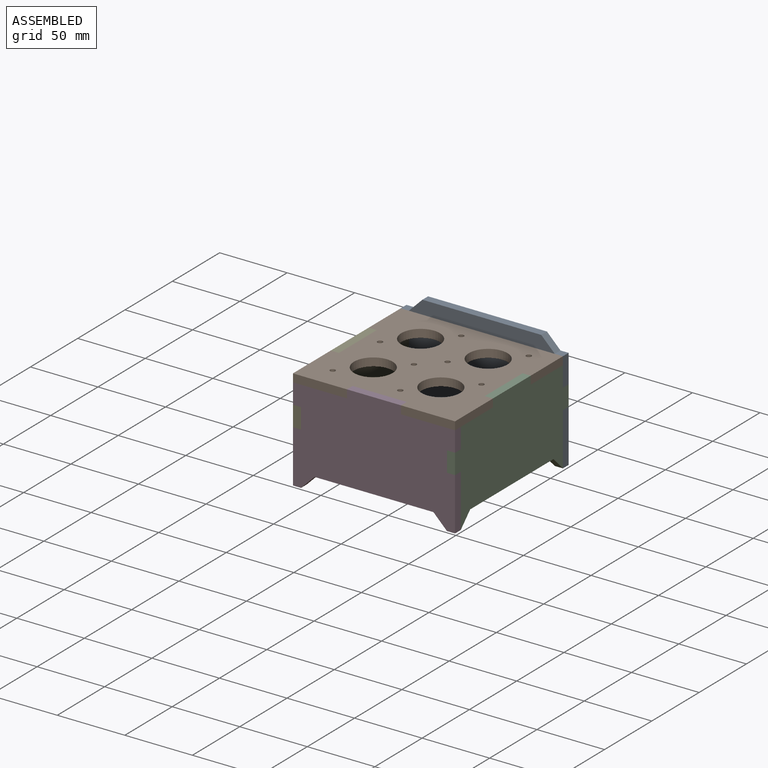
[diagram: assembled view]
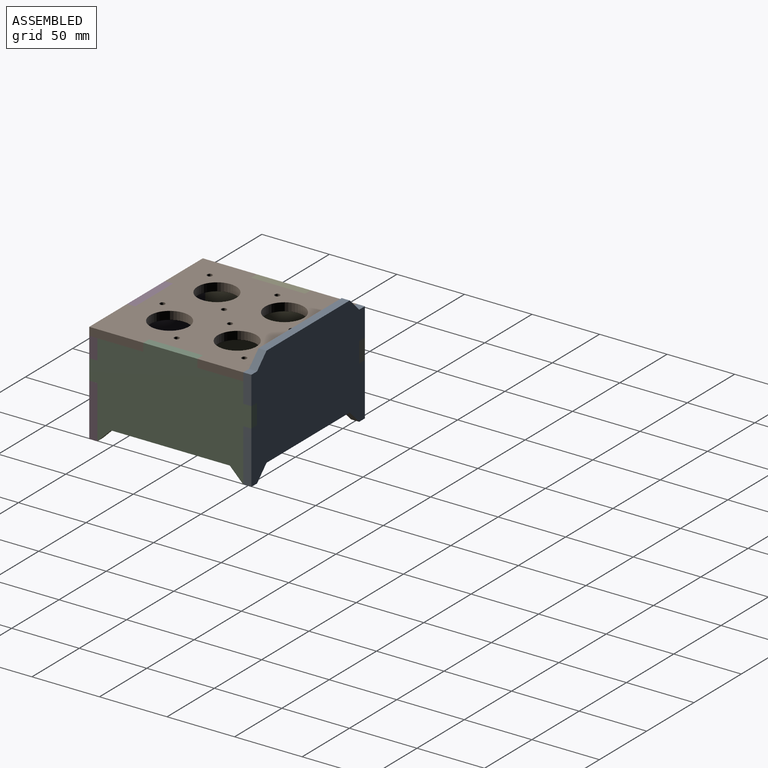
[diagram: assembled view, second angle]
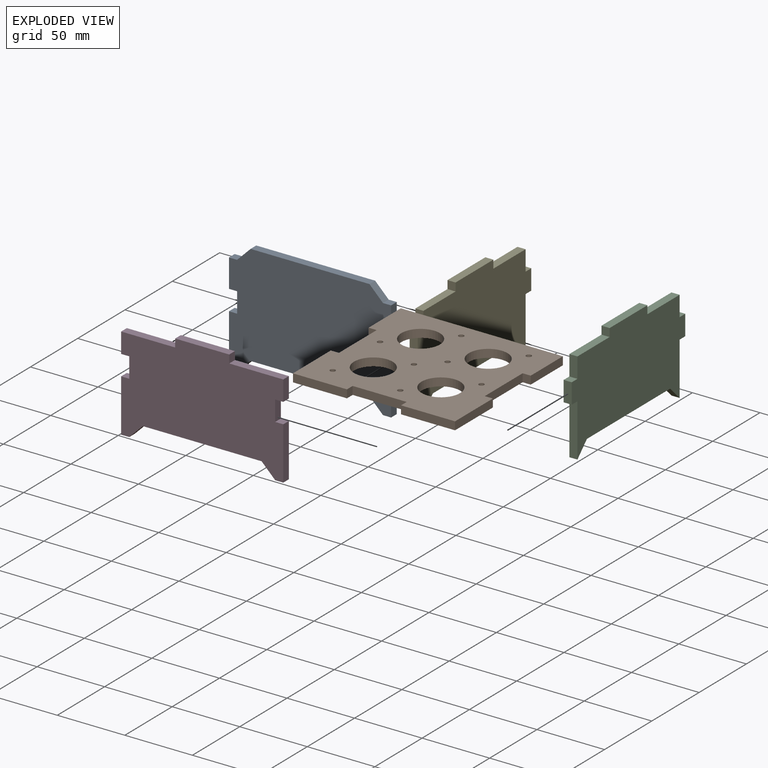
[diagram: exploded view]
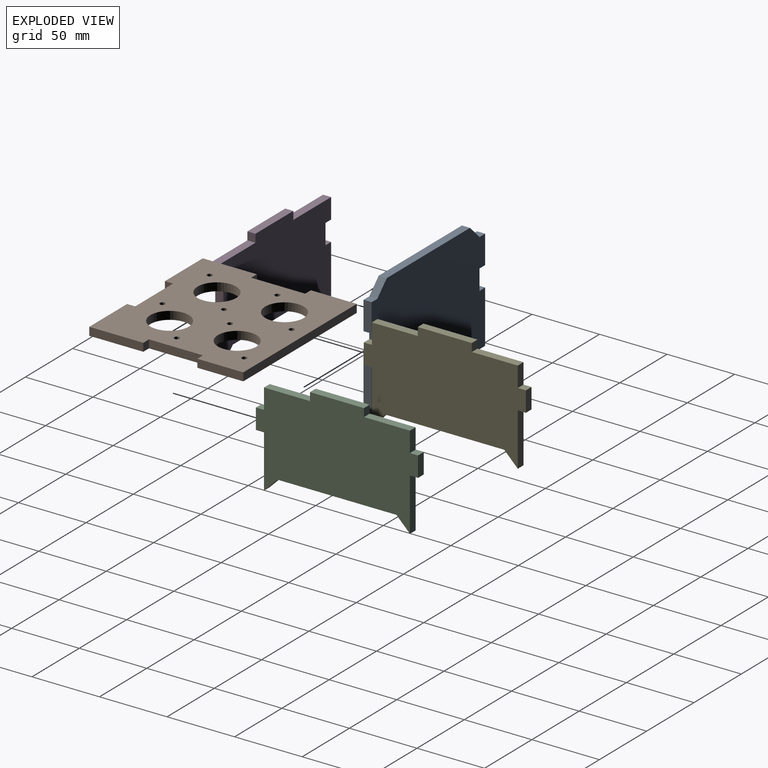
[diagram: exploded view, second angle]
ASSEMBLY  parts=5 mates=4
PART A: 22 faces, bbox 120x85x6 mm
  f0: plane 88x6mm, normal (0,-1,0), area 528mm2, adj f1,f19,f20,f21
  f1: plane 10x10mm, normal (-0.71,-0.71,0), area 84.9mm2, adj f0,f2,f20,f21
  f2: plane 6x6mm, normal (0,-1,0), area 36mm2, adj f1,f3,f20,f21
  f3: plane 39x6mm, normal (1,0,0), area 234mm2, adj f2,f4,f20,f21
  f4: plane 6x6mm, normal (0,1,0), area 36mm2, adj f3,f5,f20,f21
  f5: plane 15x6mm, normal (1,0,0), area 90mm2, adj f4,f6,f20,f21
  f6: plane 6x6mm, normal (0,-1,0), area 36mm2, adj f5,f7,f20,f21
  f7: plane 21x6mm, normal (1,0,0), area 126mm2, adj f6,f8,f20,f21
  f8: plane 6x6mm, normal (0,1,0), area 36mm2, adj f7,f9,f20,f21
  f9: plane 10x10mm, normal (0.71,0.71,0), area 84.9mm2, adj f8,f10,f20,f21
  f10: plane 88x6mm, normal (0,1,0), area 528mm2, adj f9,f11,f20,f21
  f11: plane 10x10mm, normal (-0.71,0.71,0), area 84.9mm2, adj f10,f12,f20,f21
  f12: plane 6x6mm, normal (0,1,0), area 36mm2, adj f11,f13,f20,f21
  f13: plane 21x6mm, normal (-1,0,0), area 126mm2, adj f12,f14,f20,f21
  f14: plane 6x6mm, normal (0,-1,0), area 36mm2, adj f13,f15,f20,f21
  f15: plane 15x6mm, normal (-1,0,0), area 90mm2, adj f14,f16,f20,f21
  f16: plane 6x6mm, normal (0,1,0), area 36mm2, adj f15,f17,f20,f21
  f17: plane 39x6mm, normal (-1,0,0), area 234mm2, adj f16,f18,f20,f21
  f18: plane 6x6mm, normal (0,-1,0), area 36mm2, adj f17,f19,f20,f21
  f19: plane 10x10mm, normal (0.71,-0.71,0), area 84.9mm2, adj f0,f18,f20,f21
  f20: plane 120x85mm, normal (0,0,1), area 8820mm2, adj f0,f1,f2,f3,f4,f5,f6,f7
  f21: plane 120x85mm, normal (0,0,-1), area 8820mm2, adj f0,f1,f2,f3,f4,f5,f6,f7
PART B: 30 faces, bbox 120x114x6 mm
  f0: plane 40x6mm, normal (0,-1,0), area 240mm2, adj f1,f26,f28,f29
  f1: plane 40x6mm, normal (1,0,0), area 240mm2, adj f0,f2,f28,f29
  f2: plane 6x6mm, normal (0,1,0), area 36mm2, adj f1,f3,f28,f29
  f3: plane 40x6mm, normal (1,0,0), area 240mm2, adj f2,f4,f28,f29
  f4: plane 6x6mm, normal (0,-1,0), area 36mm2, adj f3,f5,f28,f29
  f5: plane 34x6mm, normal (1,0,0), area 204mm2, adj f4,f6,f28,f29
  f6: plane 120x6mm, normal (0,1,0), area 720mm2, adj f5,f7,f28,f29
  f7: plane 34x6mm, normal (-1,0,0), area 204mm2, adj f6,f8,f28,f29
  f8: plane 6x6mm, normal (0,-1,0), area 36mm2, adj f7,f9,f28,f29
  f9: plane 40x6mm, normal (-1,0,0), area 240mm2, adj f8,f10,f28,f29
  f10: plane 6x6mm, normal (0,1,0), area 36mm2, adj f9,f11,f28,f29
  f11: plane 40x6mm, normal (-1,0,0), area 240mm2, adj f10,f12,f28,f29
  f12: plane 40x6mm, normal (0,-1,0), area 240mm2, adj f11,f13,f28,f29
  f13: plane 6x6mm, normal (1,0,0), area 36mm2, adj f12,f14,f28,f29
  f14: plane 40x6mm, normal (0,-1,0), area 240mm2, adj f13,f26,f28,f29
  f15: cylinder r=1.93mm len=6mm, axis (0,0,-1), area 72.8mm2, adj f28,f29
  f16: cylinder r=1.93mm len=6mm, axis (0,0,-1), area 72.8mm2, adj f28,f29
  f17: cylinder r=1.93mm len=6mm, axis (0,0,-1), area 72.8mm2, adj f28,f29
  f18: cylinder r=1.93mm len=6mm, axis (0,0,-1), area 72.8mm2, adj f28,f29
  f19: cylinder r=1.93mm len=6mm, axis (0,0,-1), area 72.8mm2, adj f28,f29
  f20: cylinder r=1.93mm len=6mm, axis (0,0,-1), area 72.8mm2, adj f28,f29
  f21: cylinder r=1.93mm len=6mm, axis (0,0,-1), area 72.8mm2, adj f28,f29
  f22: cylinder r=14.3mm len=28.6mm, axis (0,0,-1), area 539.1mm2, adj f28,f29
  f23: cylinder r=14.3mm len=28.6mm, axis (0,0,-1), area 539.1mm2, adj f28,f29
  f24: cylinder r=14.3mm len=28.6mm, axis (0,0,-1), area 539.1mm2, adj f28,f29
  f25: cylinder r=14.3mm len=28.6mm, axis (0,0,-1), area 539.1mm2, adj f28,f29
  f26: plane 6x6mm, normal (-1,0,0), area 36mm2, adj f0,f14,f28,f29
  f27: cylinder r=1.93mm len=6mm, axis (0,0,-1), area 72.8mm2, adj f28,f29
  f28: plane 120x114mm, normal (0,0,1), area 10296.6mm2, adj f0,f1,f2,f3,f4,f5,f6,f7
  f29: plane 120x114mm, normal (0,0,-1), area 10296.6mm2, adj f0,f1,f2,f3,f4,f5,f6,f7
PART C: 20 faces, bbox 120x75x6 mm
  f0: plane 6x6mm, normal (0,-1,0), area 36mm2, adj f1,f17,f18,f19
  f1: plane 39x6mm, normal (-1,0,0), area 234mm2, adj f0,f2,f18,f19
  f2: plane 10x10mm, normal (0.71,-0.71,0), area 84.9mm2, adj f1,f3,f18,f19
  f3: plane 88x6mm, normal (0,-1,0), area 528mm2, adj f2,f4,f18,f19
  f4: plane 10x10mm, normal (-0.71,-0.71,0), area 84.9mm2, adj f3,f5,f18,f19
  f5: plane 39x6mm, normal (1,0,0), area 234mm2, adj f4,f6,f18,f19
  f6: plane 6x6mm, normal (0,-1,0), area 36mm2, adj f5,f7,f18,f19
  f7: plane 15x6mm, normal (1,0,0), area 90mm2, adj f6,f8,f18,f19
  f8: plane 6x6mm, normal (0,1,0), area 36mm2, adj f7,f9,f18,f19
  f9: plane 15x6mm, normal (1,0,0), area 90mm2, adj f8,f10,f18,f19
  f10: plane 34x6mm, normal (0,1,0), area 204mm2, adj f9,f11,f18,f19
  f11: plane 6x6mm, normal (1,0,0), area 36mm2, adj f10,f12,f18,f19
  f12: plane 40x6mm, normal (0,1,0), area 240mm2, adj f11,f13,f18,f19
  f13: plane 6x6mm, normal (-1,0,0), area 36mm2, adj f12,f14,f18,f19
  f14: plane 34x6mm, normal (0,1,0), area 204mm2, adj f13,f15,f18,f19
  f15: plane 15x6mm, normal (-1,0,0), area 90mm2, adj f14,f16,f18,f19
  f16: plane 6x6mm, normal (0,1,0), area 36mm2, adj f15,f17,f18,f19
  f17: plane 15x6mm, normal (-1,0,0), area 90mm2, adj f0,f16,f18,f19
  f18: plane 120x75mm, normal (0,0,1), area 6892mm2, adj f0,f1,f2,f3,f4,f5,f6,f7
  f19: plane 120x75mm, normal (0,0,-1), area 6892mm2, adj f0,f1,f2,f3,f4,f5,f6,f7
PART D: 22 faces, bbox 120x75x6 mm
  f0: plane 39x6mm, normal (-1,0,0), area 234mm2, adj f1,f19,f20,f21
  f1: plane 6x6mm, normal (0,-1,0), area 36mm2, adj f0,f2,f20,f21
  f2: plane 10x10mm, normal (0.71,-0.71,0), area 84.9mm2, adj f1,f3,f20,f21
  f3: plane 88x6mm, normal (0,-1,0), area 528mm2, adj f2,f4,f20,f21
  f4: plane 10x10mm, normal (-0.71,-0.71,0), area 84.9mm2, adj f3,f5,f20,f21
  f5: plane 6x6mm, normal (0,-1,0), area 36mm2, adj f4,f6,f20,f21
  f6: plane 39x6mm, normal (1,0,0), area 234mm2, adj f5,f7,f20,f21
  f7: plane 6x6mm, normal (0,1,0), area 36mm2, adj f6,f8,f20,f21
  f8: plane 15x6mm, normal (1,0,0), area 90mm2, adj f7,f9,f20,f21
  f9: plane 6x6mm, normal (0,-1,0), area 36mm2, adj f8,f10,f20,f21
  f10: plane 15x6mm, normal (1,0,0), area 90mm2, adj f9,f11,f20,f21
  f11: plane 40x6mm, normal (0,1,0), area 240mm2, adj f10,f12,f20,f21
  f12: plane 6x6mm, normal (1,0,0), area 36mm2, adj f11,f13,f20,f21
  f13: plane 40x6mm, normal (0,1,0), area 240mm2, adj f12,f14,f20,f21
  f14: plane 6x6mm, normal (-1,0,0), area 36mm2, adj f13,f15,f20,f21
  f15: plane 40x6mm, normal (0,1,0), area 240mm2, adj f14,f16,f20,f21
  f16: plane 15x6mm, normal (-1,0,0), area 90mm2, adj f15,f17,f20,f21
  f17: plane 6x6mm, normal (0,-1,0), area 36mm2, adj f16,f18,f20,f21
  f18: plane 15x6mm, normal (-1,0,0), area 90mm2, adj f17,f19,f20,f21
  f19: plane 6x6mm, normal (0,1,0), area 36mm2, adj f0,f18,f20,f21
  f20: plane 120x75mm, normal (0,0,1), area 7360mm2, adj f0,f1,f2,f3,f4,f5,f6,f7
  f21: plane 120x75mm, normal (0,0,-1), area 7360mm2, adj f0,f1,f2,f3,f4,f5,f6,f7
PART E: same geometry as C
PLACE A rot(axis=(1,0,0),90deg) t=(-61.14,63.61,-93.12)mm
PLACE B t=(108.86,-56.39,64.88)mm fixed
PLACE C rot(axis=(0.58,0.58,0.58),120deg) t=(52.86,-56.39,74.88)mm
PLACE D rot(axis=(1,0,0),90deg) t=(-61.14,-50.39,-4.12)mm
PLACE E rot(axis=(0.58,0.58,0.58),120deg) t=(-61.14,-56.39,74.88)mm
MATE fastened A.f7 <-> B.f5  axis (-1,0,0) through (58.86,57.61,70.88)mm
MATE fastened E.f11 <-> B.f8  axis (0,1,0) through (-61.14,23.61,70.88)mm
MATE fastened D.f12 <-> B.f26  axis (1,0,0) through (18.86,-56.39,70.88)mm
MATE fastened C.f11 <-> B.f4  axis (0,1,0) through (58.86,23.61,70.88)mm
